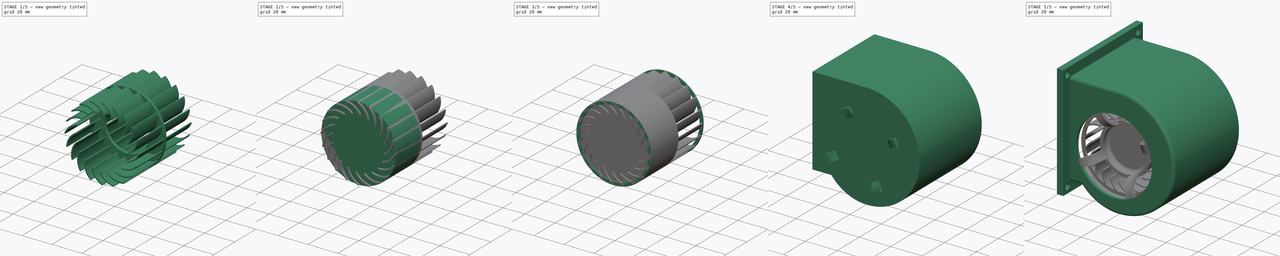
[diagram: build sequence overview — one tinted view per stage of 5, left to right]
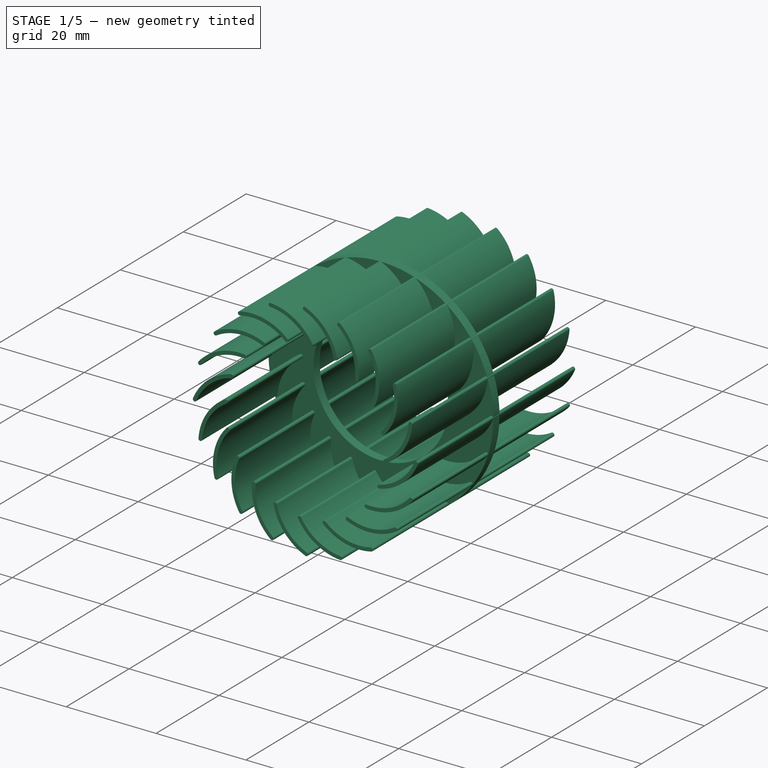
[diagram: stage 1 of 5 — iso view after this stage's code; geometry added in this stage tinted green]
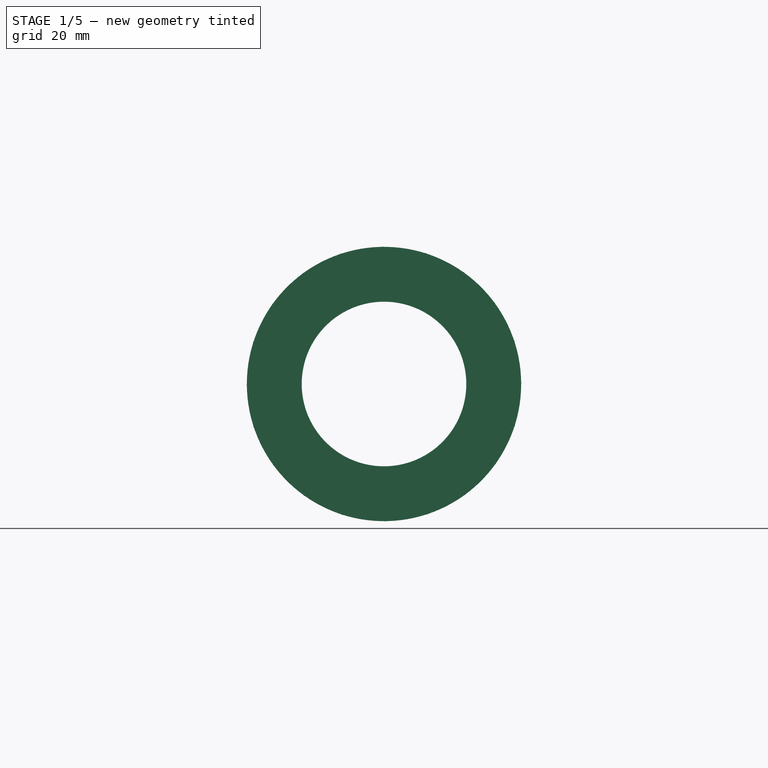
[diagram: stage 1 of 5 — front view after this stage's code; geometry added in this stage tinted green]
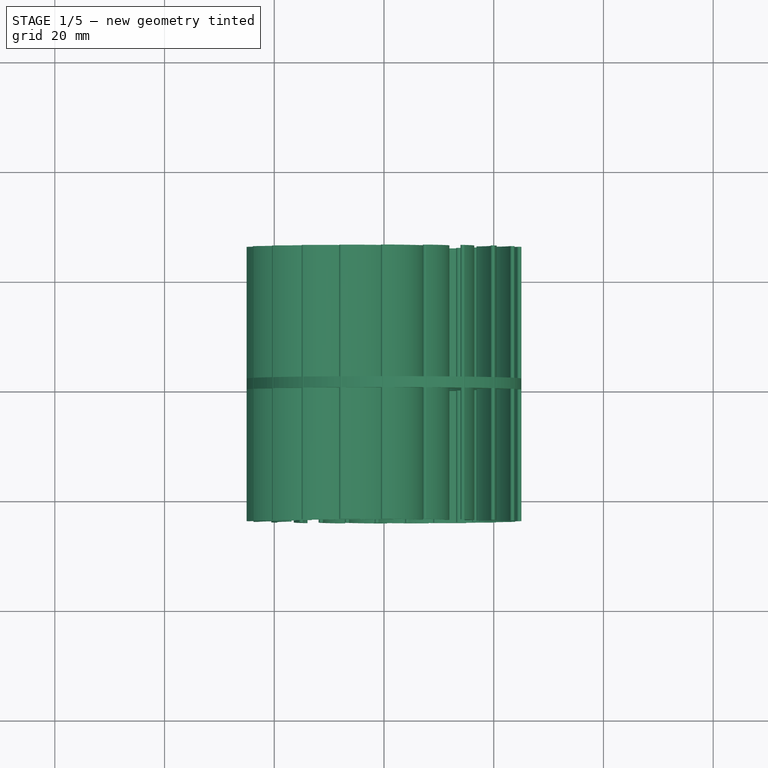
[diagram: stage 1 of 5 — top view after this stage's code; geometry added in this stage tinted green]
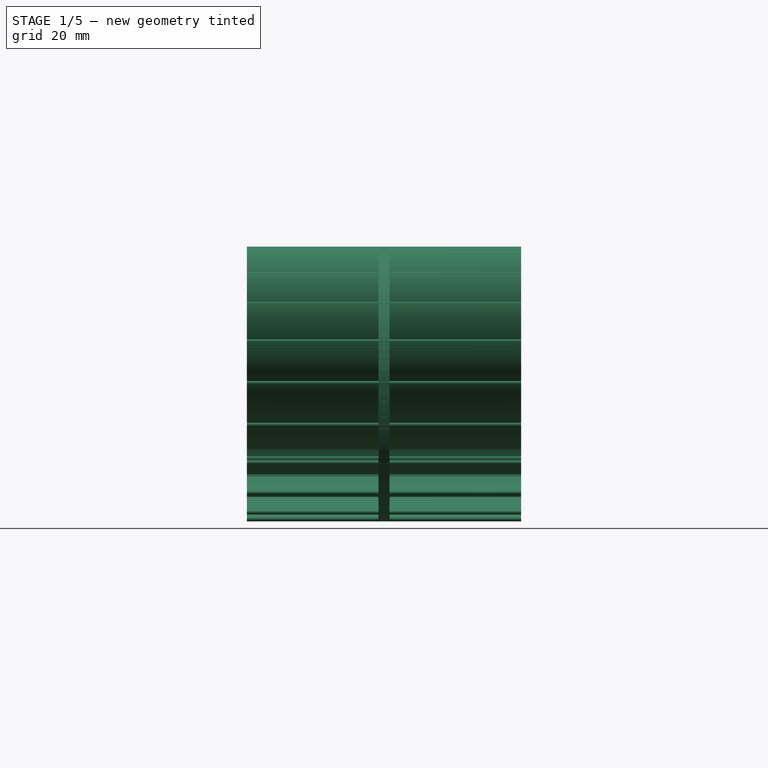
[diagram: stage 1 of 5 — right view after this stage's code; geometry added in this stage tinted green]
FCSTD DOCUMENT  (FreeCAD 0.18R13524 (Git))
Label: VENTILADOR SIROCO
License: All rights reserved
LicenseURL: http://en.wikipedia.org/wiki/All_rights_reserved
objects: Sketcher::SketchObject×11, Part::Cylinder×8, PartDesign::ShapeBinder×7, Part::Cut×5, PartDesign::Pocket×4, Part::MultiFuse×4, PartDesign::Pad×3, PartDesign::Body×3, PartDesign::Plane×3, Part::Feature×2, PartDesign::Thickness×1, PartDesign::Fillet×1, PartDesign::Revolution×1, Part::Fillet×1, Part::FeaturePython×1
note: 63 computed .brp shape members not serialized (recipe doc carries the construction recipe); baked Part::Feature solids carry a one-line shape summary decoded from their .brp

FEATURE [Part::Cylinder] Cylinder006
  Angle = 360
  AttacherType = Attacher::AttachEngine3D
  Height = 2
  Placement = pos=(0,2,0) rot=(1,0,0;1.5708rad)
  Radius = 25
FEATURE [Part::Cylinder] Cylinder007
  Angle = 360
  AttacherType = Attacher::AttachEngine3D
  Height = 10
  Placement = pos=(0,0,0) rot=(-1,0,0;1.5708rad)
  Radius = 15
FEATURE [Part::Cut] Cut004
  Base = -> Cylinder006
  Tool = -> Cylinder007
FEATURE [Part::Feature] Fusion003001  label="2-ROTOR"
  shape: bbox 50 x 50 x 50 mm, 18 faces, 3 solids (baked)
FEATURE [PartDesign::ShapeBinder] CopyFusion003001
FEATURE [Sketcher::SketchObject] Sketch007
  MapMode = 5
  Placement = pos=(0,-24,0) rot=(1,0,0;1.5708rad)
  Support = -> [CopyFusion003001]
FEATURE [PartDesign::ShapeBinder] CopyFusion003001001
FEATURE [Sketcher::SketchObject] Sketch008
  MapMode = 5
  Placement = pos=(0,-24,0) rot=(1,0,0;1.5708rad)
  Support = -> [CopyFusion003001001]
FEATURE [PartDesign::ShapeBinder] ReferenceFusion003001
  Support = -> [Fusion003001]
FEATURE [Sketcher::SketchObject] Sketch009
  MapMode = 5
  Placement = pos=(0,-24,0) rot=(1,0,0;1.5708rad)
  Support = -> [ReferenceFusion003001]
FEATURE [PartDesign::ShapeBinder] CopyFusion003001002
FEATURE [PartDesign::Plane] DatumPlane001
  MapMode = 5
  Placement = pos=(0,-24,0) rot=(1,0,0;1.5708rad)
  Support = -> [CopyFusion003001002]
FEATURE [PartDesign::ShapeBinder] CopyFusion003001003
FEATURE [PartDesign::Plane] DatumPlane002
  MapMode = 5
  Placement = pos=(0,-24,0) rot=(1,0,0;1.5708rad)
  Support = -> [CopyFusion003001003]
FEATURE [PartDesign::ShapeBinder] CopyFusion003001004
FEATURE [PartDesign::Body] Body001
  Group = -> [Sketch004,Revolution,DatumPlane,Sketch005,Pocket002,Sketch006,Pocket003,CopyFusion003001,Sketch007,CopyFusion003001001,Sketch008,ReferenceFusion003001,Sketch009,DatumPlane001,CopyFusion003001002,DatumPlane002,CopyFusion003001003,CopyFusion003001004]
  Origin = -> Origin001
  Tip = -> Pocket003
FEATURE [PartDesign::ShapeBinder] CopyFusion003001005
FEATURE [Sketcher::SketchObject] Sketch010
  MapMode = 5
  Placement = pos=(0,-24,0) rot=(1,0,0;1.5708rad)
  Support = -> [CopyFusion003001005]
  sketch-geometry (9):
    g0: Circle [constr] CenterX=0 CenterY=0 CenterZ=0 NormalX=0 NormalY=0 NormalZ=1 AngleXU=0 Radius=25
    g1: Circle [constr] CenterX=0 CenterY=0 CenterZ=0 NormalX=0 NormalY=0 NormalZ=1 AngleXU=0 Radius=18
    g2: LineSegment [constr] StartX=0 StartY=25 StartZ=0 EndX=7.09737 EndY=16.5417 EndZ=0
    g3: ArcOfCircle CenterX=-4.61323 CenterY=13.9222 CenterZ=0 NormalX=0 NormalY=0 NormalZ=1 AngleXU=0 Radius=12 StartAngle=0.220064 EndAngle=1.1762
    g4: ArcOfCircle CenterX=-4.61323 CenterY=13.9222 CenterZ=0 NormalX=0 NormalY=0 NormalZ=1 AngleXU=0 Radius=11.2 StartAngle=0.220064 EndAngle=1.1762
    g5: LineSegment [constr] StartX=0 StartY=25 StartZ=0 EndX=-0.307549 EndY=24.2615 EndZ=0
    g6: LineSegment [constr] StartX=6.31666 StartY=16.3671 StartZ=0 EndX=7.09737 EndY=16.5417 EndZ=0
    g7: ArcOfCircle CenterX=-0.153774 CenterY=24.6307 CenterZ=0 NormalX=0 NormalY=0 NormalZ=1 AngleXU=0 Radius=0.4 StartAngle=1.1762 EndAngle=4.31779
    g8: ArcOfCircle CenterX=6.70702 CenterY=16.4544 CenterZ=0 NormalX=0 NormalY=0 NormalZ=1 AngleXU=0 Radius=0.4 StartAngle=3.36166 EndAngle=6.50325
  constraints (25):
    c: Coincident(g0,g-1)
    c: Coincident(g1,g-1)
    c: PointOnObject(g2,g-2)
    c: Angle(g-2,g2) = 0.698132
    c: PointOnObject(g2,g0)
    c: Radius(g1) = 18
    c: Radius(g0) = 25
    c: PointOnObject(g2,g1)
    c: Coincident(g3,g2)
    c: Coincident(g3,g2)
    c: Radius(g3) = 12
    c: Coincident(g4,g3)
    c: Coincident(g5,g2)
    c: Coincident(g5,g4)
    c: Perpendicular(g3,g5)
    c: Coincident(g6,g4)
    c: Coincident(g6,g2)
    c: Perpendicular(g4,g6)
    c: PointOnObject(g7,g5)
    c: Coincident(g4,g7)
    c: Coincident(g2,g7)
    c: PointOnObject(g8,g6)
    c: Coincident(g8,g2)
    c: Coincident(g4,g8)
    c: Radius(g8) = 0.4
FEATURE [PartDesign::Pad] Pad002
  Length = 50
  Length2 = 100
  Profile = -> Sketch010
  Reversed = true
  Type = 0
FEATURE [PartDesign::Body] Body002
  Group = -> [CopyFusion003001005,Sketch010,Pad002]
  Origin = -> Origin002
  Tip = -> Pad002
FEATURE [Part::FeaturePython] Array  # Draft array (typed FeaturePython)
  Angle = 360
  ArrayType = 1
  Axis = (0,1,0)
  Base = -> Pad002
  Center = (0,0,0)
  Fuse = false
  IntervalAxis = (0,0,0)
  IntervalX = (1,0,0)
  IntervalY = (0,1,0)
  IntervalZ = (0,0,0)
  NumberPolar = 20
  NumberX = 2
  NumberY = 2
  NumberZ = 1
FEATURE [Part::MultiFuse] Fusion003002  label="3-PALHETAS"
  Shapes = -> [Array]
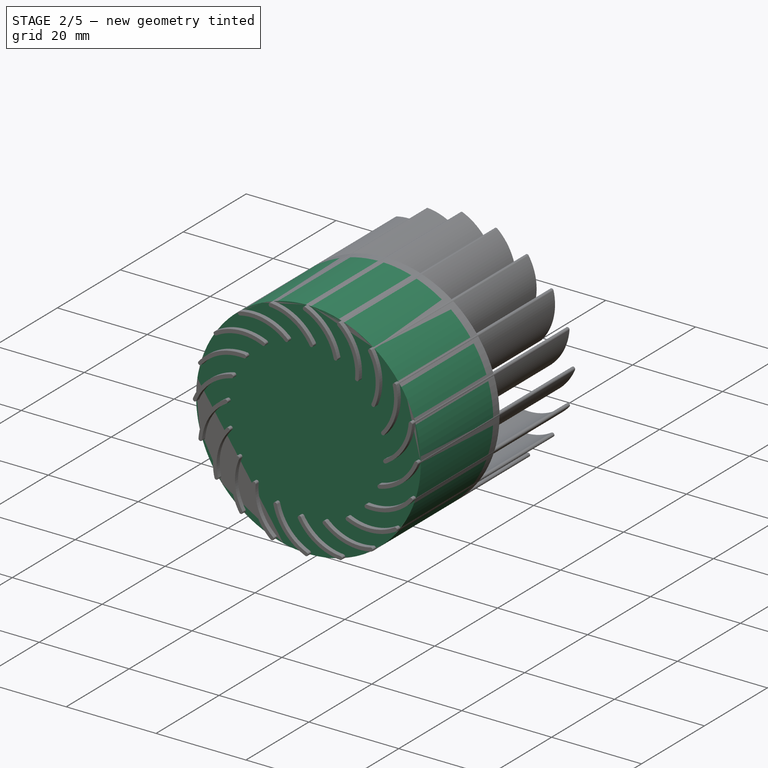
[diagram: stage 2 of 5 — iso view after this stage's code; geometry added in this stage tinted green]
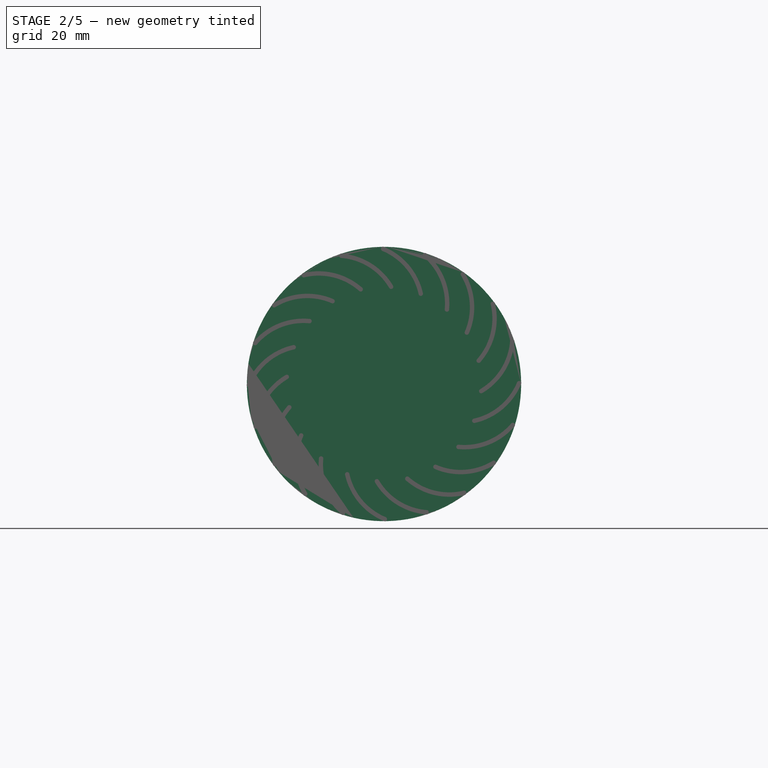
[diagram: stage 2 of 5 — front view after this stage's code; geometry added in this stage tinted green]
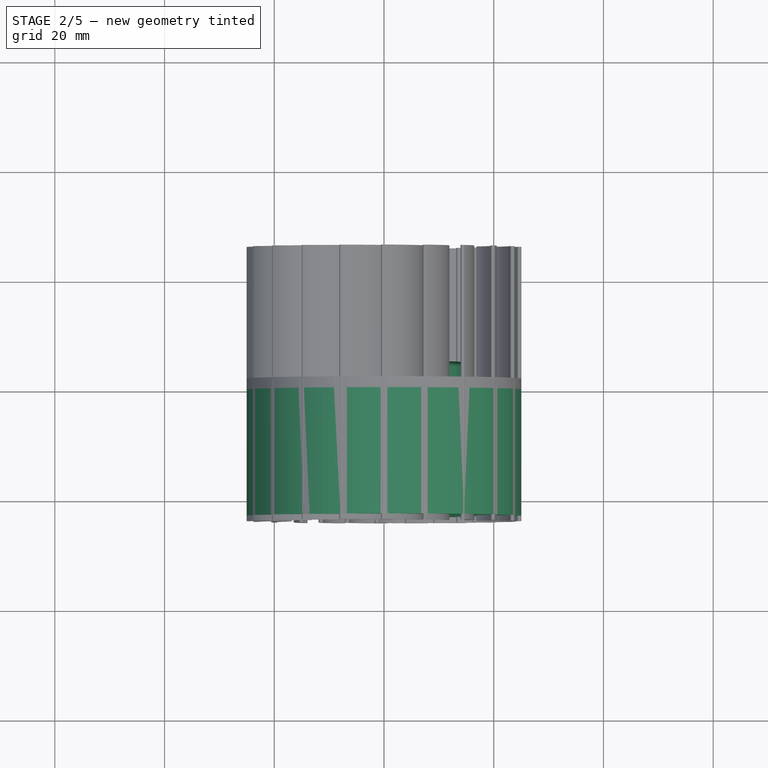
[diagram: stage 2 of 5 — top view after this stage's code; geometry added in this stage tinted green]
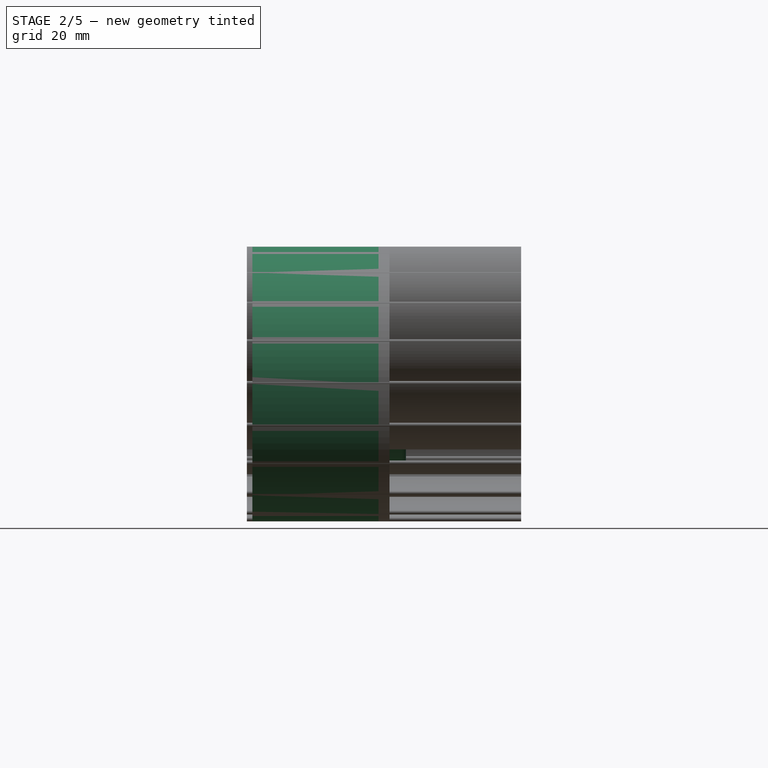
[diagram: stage 2 of 5 — right view after this stage's code; geometry added in this stage tinted green]
FEATURE [Part::Feature] Fusion001  label="1-CARCAÇA"
  shape: bbox 72.93 x 72 x 79.93 mm, 65 faces (baked)
FEATURE [Part::Cylinder] Cylinder
  Angle = 360
  AttacherType = Attacher::AttachEngine3D
  Height = 18
  Placement = pos=(0,5,0) rot=(1,0,0;1.5708rad)
  Radius = 15
FEATURE [Part::Cylinder] Cylinder001
  Angle = 360
  AttacherType = Attacher::AttachEngine3D
  Height = 17
  Placement = pos=(0,4,0) rot=(1,0,0;1.5708rad)
  Radius = 13
FEATURE [Part::Cut] Cut
  Base = -> Cylinder
  Tool = -> Cylinder001
FEATURE [Part::Fillet] Fillet001
  Base = -> Cut
  Edges = 1 edges r=1: [Edge3]
FEATURE [Part::Cylinder] Cylinder005
  Angle = 360
  AttacherType = Attacher::AttachEngine3D
  Height = 23
  Placement = pos=(0,0,0) rot=(1,0,0;1.5708rad)
  Radius = 25
FEATURE [Part::MultiFuse] Fusion002
  Shapes = -> [Fillet001,Cut004]
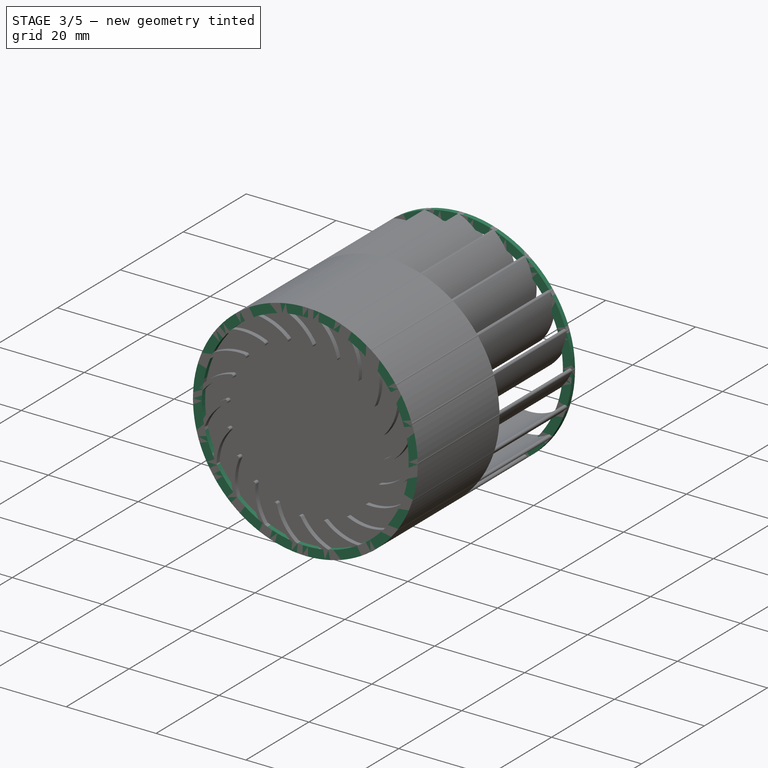
[diagram: stage 3 of 5 — iso view after this stage's code; geometry added in this stage tinted green]
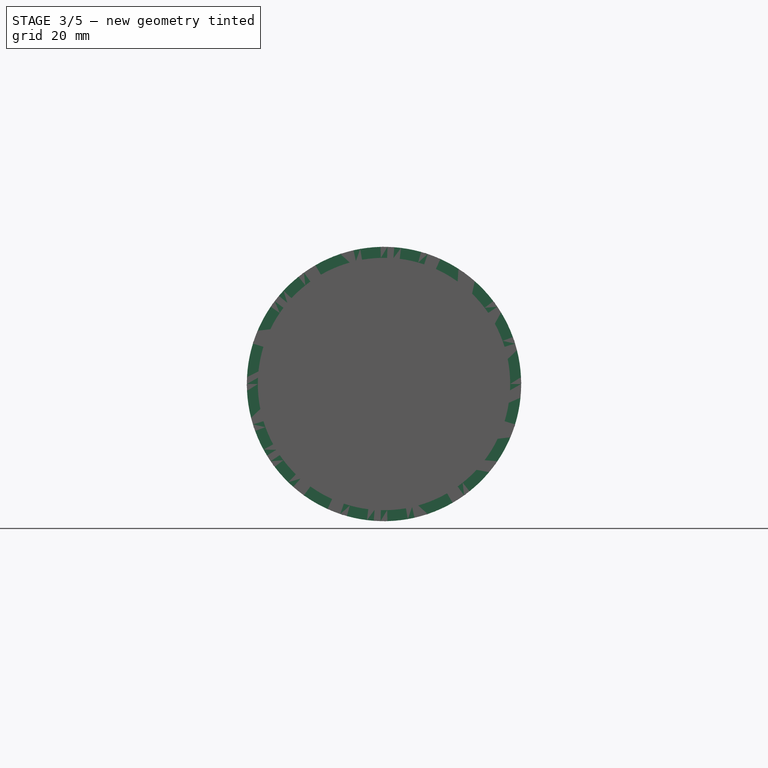
[diagram: stage 3 of 5 — front view after this stage's code; geometry added in this stage tinted green]
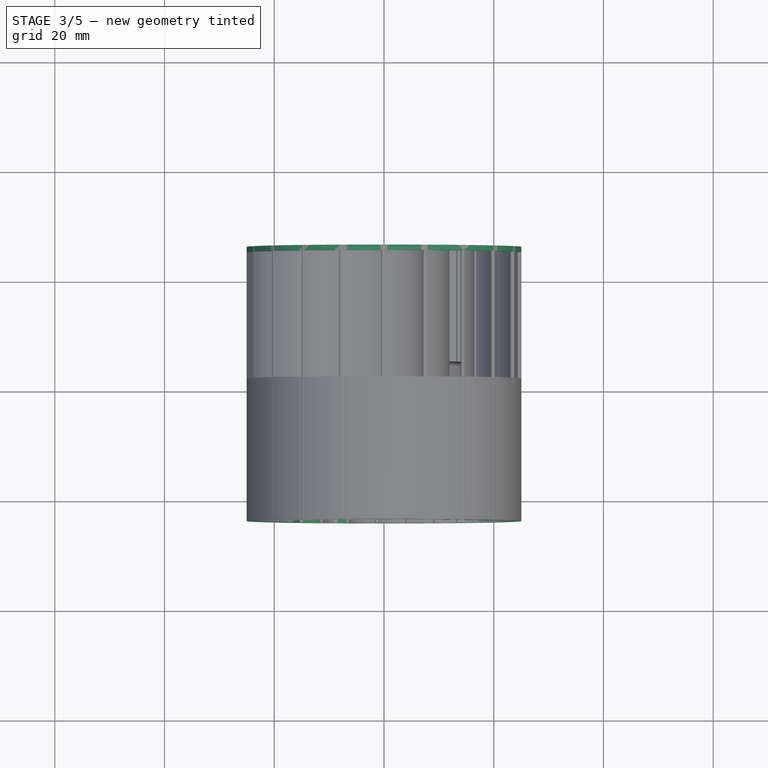
[diagram: stage 3 of 5 — top view after this stage's code; geometry added in this stage tinted green]
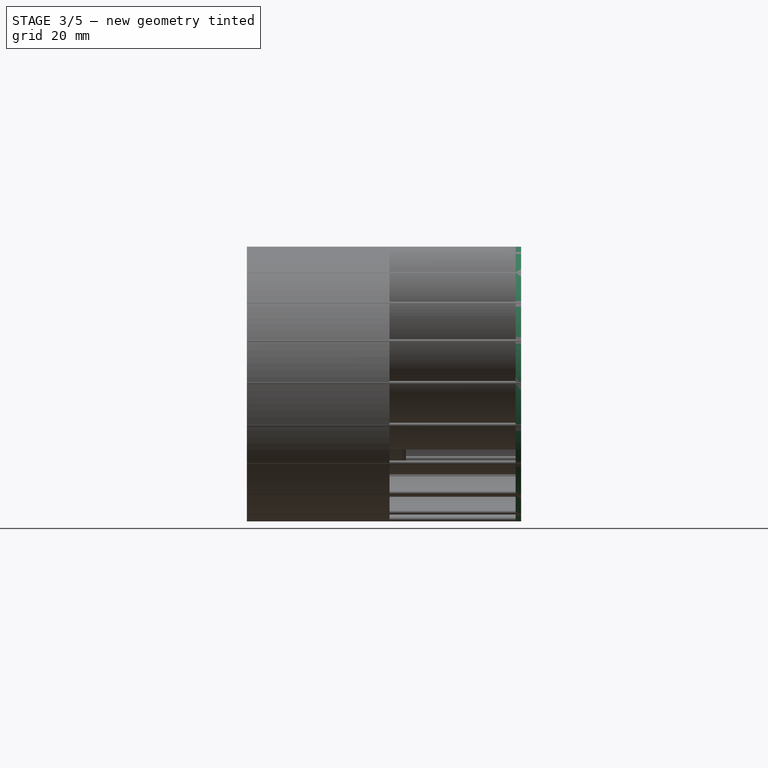
[diagram: stage 3 of 5 — right view after this stage's code; geometry added in this stage tinted green]
FEATURE [Part::Cylinder] Cylinder002
  Angle = 360
  AttacherType = Attacher::AttachEngine3D
  Height = 50
  Placement = pos=(0,26,0) rot=(1,0,0;1.5708rad)
  Radius = 25
FEATURE [Part::Cylinder] Cylinder003
  Angle = 360
  AttacherType = Attacher::AttachEngine3D
  Height = 50
  Placement = pos=(0,26,0) rot=(1,0,0;1.5708rad)
  Radius = 23
FEATURE [Part::Cut] Cut001
  Base = -> Cylinder002
  Tool = -> Cylinder003
FEATURE [Part::Cylinder] Cylinder004
  Angle = 360
  AttacherType = Attacher::AttachEngine3D
  Height = 23
  Placement = pos=(0,25,0) rot=(1,0,0;1.5708rad)
  Radius = 25
FEATURE [Part::Cut] Cut002
  Base = -> Cut001
  Tool = -> Cylinder004
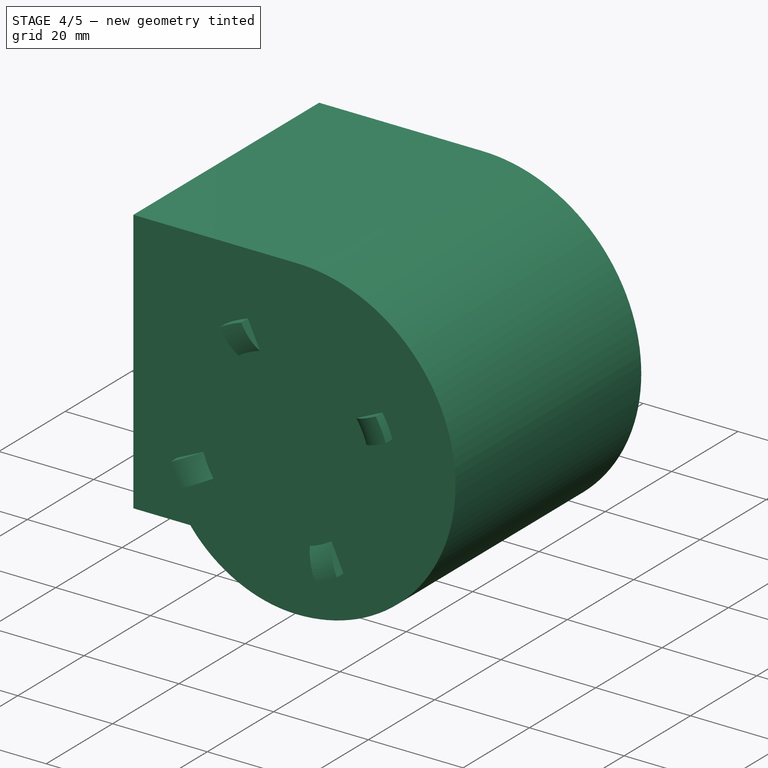
[diagram: stage 4 of 5 — iso view after this stage's code; geometry added in this stage tinted green]
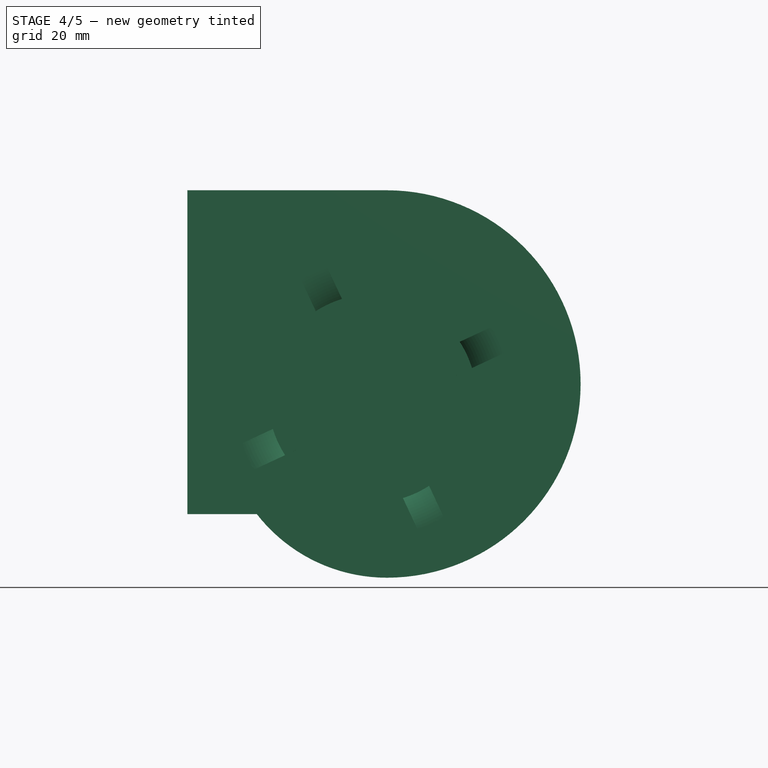
[diagram: stage 4 of 5 — front view after this stage's code; geometry added in this stage tinted green]
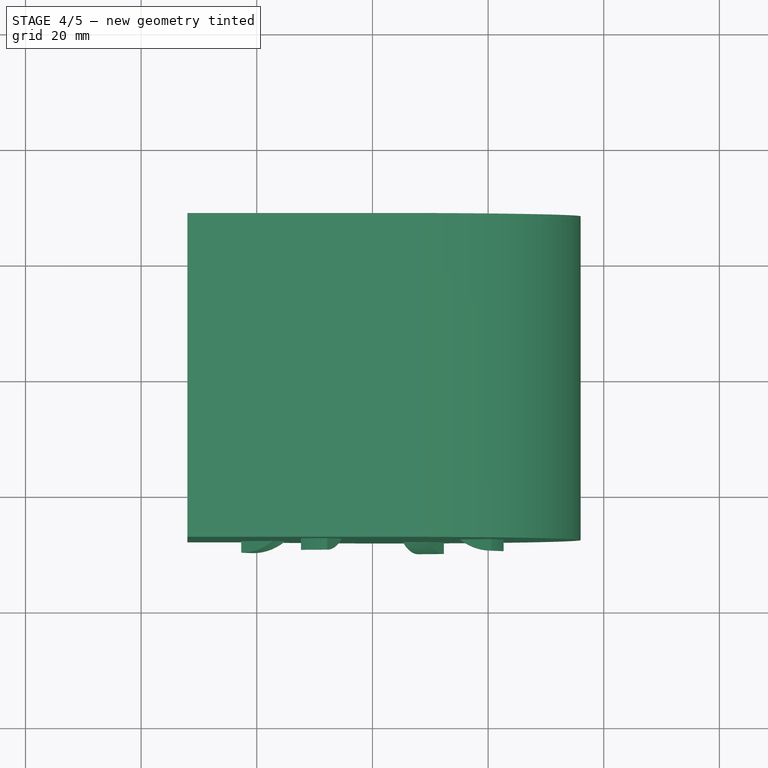
[diagram: stage 4 of 5 — top view after this stage's code; geometry added in this stage tinted green]
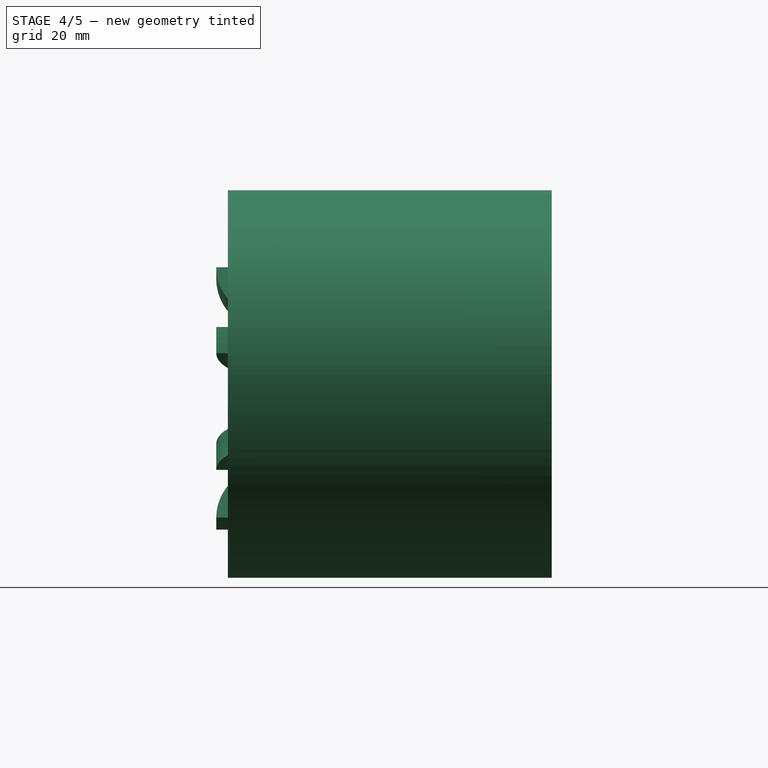
[diagram: stage 4 of 5 — right view after this stage's code; geometry added in this stage tinted green]
FEATURE [Sketcher::SketchObject] Sketch
  MapMode = 5
  Placement = pos=(0,0,0) rot=(1,0,0;1.5708rad)
  Support = -> [XZ_Plane]
  sketch-geometry (12):
    g0: Circle [constr] CenterX=0 CenterY=0 CenterZ=0 NormalX=0 NormalY=0 NormalZ=1 AngleXU=0 Radius=25
    g1: LineSegment [constr] StartX=-2.5 StartY=2.5 StartZ=0 EndX=-2.5 EndY=-2.5 EndZ=0
    g2: LineSegment [constr] StartX=-2.5 StartY=-2.5 StartZ=0 EndX=2.5 EndY=-2.5 EndZ=0
    g3: LineSegment [constr] StartX=2.5 StartY=-2.5 StartZ=0 EndX=2.5 EndY=2.5 EndZ=0
    g4: LineSegment [constr] StartX=2.5 StartY=2.5 StartZ=0 EndX=-2.5 EndY=2.5 EndZ=0
    g5: Circle [constr] CenterX=0 CenterY=0 CenterZ=0 NormalX=0 NormalY=0 NormalZ=1 AngleXU=0 Radius=3.53553
    g6: LineSegment StartX=-32 StartY=-20 StartZ=0 EndX=-32 EndY=36 EndZ=0
    g7: LineSegment StartX=-32 StartY=36 StartZ=0 EndX=2.5 EndY=36 EndZ=0
    g8: ArcOfCircle CenterX=2.5 CenterY=2.5 CenterZ=0 NormalX=0 NormalY=0 NormalZ=1 AngleXU=0 Radius=33.5 StartAngle=0 EndAngle=1.5708
    g9: ArcOfCircle CenterX=2.5 CenterY=2.5 CenterZ=0 NormalX=0 NormalY=0 NormalZ=1 AngleXU=0 Radius=33.5 StartAngle=4.71239 EndAngle=6.28319
    g10: ArcOfCircle CenterX=2.5 CenterY=-2.5 CenterZ=0 NormalX=0 NormalY=0 NormalZ=1 AngleXU=0 Radius=28.5 StartAngle=3.80276 EndAngle=4.71239
    g11: LineSegment StartX=-32 StartY=-20 StartZ=0 EndX=-19.9944 EndY=-20 EndZ=0
  constraints (34):
    c: Coincident(g0,g-1)
    c: Radius(g0) = 25
    c: Coincident(g1,g2)
    c: Coincident(g3,g4)
    c: Coincident(g4,g1)
    c: Equal(g1,g2)
    c: Equal(g1,g3)
    c: Equal(g1,g4)
    c: PointOnObject(g1,g5)
    c: PointOnObject(g2,g5)
    c: PointOnObject(g3,g5)
    c: PointOnObject(g4,g5)
    c: Coincident(g5,g-1)
    c: Horizontal(g4)
    c: DistanceX(g4,g4) = 5
    c: Vertical(g6)
    c: Coincident(g6,g7)
    c: Horizontal(g7)
    c: DistanceY(g-1,g6) = 36
    c: DistanceY(g6,g6) = 56
    c: Vertical(g7,g3)
    c: Coincident(g8,g3)
    c: Coincident(g8,g7)
    c: Horizontal(g3,g8)
    c: Coincident(g9,g3)
    c: Vertical(g9,g3)
    c: Coincident(g10,g3)
    c: Coincident(g10,g9)
    c: Coincident(g8,g9)
    c: Coincident(g11,g6)
    c: Horizontal(g11)
    c: Coincident(g11,g10)
    c: Coincident(g2,g3)
    c: DistanceX(g6,g-1) = 32
FEATURE [PartDesign::Pad] Pad
  Length = 56
  Length2 = 100
  Midplane = true
  Placement = pos=(0,0,0) rot=(1,0,0;1.5708rad)
  Profile = -> Sketch
  Type = 0
FEATURE [PartDesign::Body] Body
  Group = -> [Sketch,Pad,Thickness,Sketch001,Pocket,Fillet,Sketch002,Pad001,Sketch003,Pocket001]
  Origin = -> Origin
  Tip = -> Pocket001
FEATURE [Sketcher::SketchObject] Sketch004
  MapMode = 5
  Support = -> [XY_Plane001]
  sketch-geometry (10):
    g0: ArcOfCircle CenterX=24 CenterY=-20 CenterZ=0 NormalX=0 NormalY=0 NormalZ=1 AngleXU=0 Radius=8 StartAngle=3.14159 EndAngle=4.71239
    g1: ArcOfCircle CenterX=24 CenterY=-20 CenterZ=0 NormalX=0 NormalY=0 NormalZ=1 AngleXU=0 Radius=10 StartAngle=3.14159 EndAngle=4.71239
    g2: LineSegment StartX=24 StartY=-30 StartZ=0 EndX=24 EndY=-28 EndZ=0
    g3: LineSegment StartX=14 StartY=-20 StartZ=0 EndX=14 EndY=-18 EndZ=0
    g4: ArcOfCircle CenterX=12 CenterY=-18 CenterZ=0 NormalX=0 NormalY=0 NormalZ=1 AngleXU=0 Radius=2 StartAngle=0 EndAngle=1.5708
    g5: LineSegment StartX=12 StartY=-16 StartZ=0 EndX=0 EndY=-16 EndZ=0
    g6: LineSegment StartX=0 StartY=-16 StartZ=0 EndX=0 EndY=-14 EndZ=0
    g7: LineSegment StartX=0 StartY=-14 StartZ=0 EndX=12 EndY=-14 EndZ=0
    g8: ArcOfCircle CenterX=12 CenterY=-18 CenterZ=0 NormalX=0 NormalY=0 NormalZ=1 AngleXU=0 Radius=4 StartAngle=0 EndAngle=1.5708
    g9: LineSegment StartX=16 StartY=-18 StartZ=0 EndX=16 EndY=-20 EndZ=0
  constraints (27):
    c: Coincident(g1,g0)
    c: Coincident(g2,g1)
    c: Coincident(g2,g0)
    c: Vertical(g2)
    c: Tangent(g1,g3) = 1.5708
    c: Tangent(g3,g4) = -1.5708
    c: Tangent(g4,g5) = -1.5708
    c: Coincident(g5,g6)
    c: PointOnObject(g6,g-2)
    c: Vertical(g6)
    c: Coincident(g6,g7)
    c: Horizontal(g7)
    c: Tangent(g7,g8) = 1.5708
    c: Coincident(g9,g0)
    c: Vertical(g9)
    c: Horizontal(g5)
    c: Tangent(g8,g9) = 1.5708
    c: Coincident(g4,g8)
    c: Equal(g6,g2)
    c: DistanceY(g1,g-1) = 30
    c: DistanceY(g6,g6) = 2
    c: DistanceX(g-1,g1) = 24
    c: Radius(g1) = 10
    c: Horizontal(g1,g0)
    c: Horizontal(g3,g8)
    c: DistanceY(g0,g8) = 2
    c: Radius(g4) = 2
FEATURE [PartDesign::Revolution] Revolution
  Angle = 360
  Axis = (0,1,0)
  Base = (0,0,0)
  Profile = -> Sketch004
  ReferenceAxis = -> Y_Axis001
  Reversed = true
FEATURE [PartDesign::Plane] DatumPlane
  MapMode = 11
  Placement = pos=(0,-30,0) rot=(0.57735,-0.57735,0.57735;2.0944rad)
  Support = -> [Revolution]
FEATURE [Sketcher::SketchObject] Sketch005
  ExternalGeometry = -> [Revolution]
  MapMode = 5
  Placement = pos=(0,-30,0) rot=(0.57735,-0.57735,0.57735;2.0944rad)
  Support = -> [DatumPlane]
  sketch-geometry (14):
    g0: LineSegment [constr] StartX=0 StartY=0 StartZ=0 EndX=21.7514 EndY=10.1428 EndZ=0
    g1: ArcOfCircle CenterX=0 CenterY=0 CenterZ=0 NormalX=0 NormalY=0 NormalZ=1 AngleXU=0 Radius=24 StartAngle=5.25308 EndAngle=6.61516
    g2: LineSegment [constr] StartX=0 StartY=0 StartZ=0 EndX=10.1428 EndY=-21.7514 EndZ=0
    g3: LineSegment StartX=22.6896 StartY=7.82189 StartZ=0 EndX=3.32232 EndY=-1.20922 EndZ=0
    g4: LineSegment StartX=3.32232 StartY=-1.20922 StartZ=0 EndX=12.3534 EndY=-20.5765 EndZ=0
    g5: ArcOfCircle CenterX=0 CenterY=0 CenterZ=0 NormalX=0 NormalY=0 NormalZ=1 AngleXU=0 Radius=24 StartAngle=0.540688 EndAngle=1.90277
    g6: LineSegment StartX=20.5765 StartY=12.3534 StartZ=0 EndX=1.20922 EndY=3.32232 EndZ=0
    g7: LineSegment StartX=-7.82189 StartY=22.6896 StartZ=0 EndX=1.20922 EndY=3.32232 EndZ=0
    g8: ArcOfCircle CenterX=0 CenterY=0 CenterZ=0 NormalX=0 NormalY=0 NormalZ=1 AngleXU=0 Radius=24 StartAngle=2.11148 EndAngle=3.47357
    g9: LineSegment StartX=-22.6896 StartY=-7.82189 StartZ=0 EndX=-3.32232 EndY=1.20922 EndZ=0
    g10: LineSegment StartX=-3.32232 StartY=1.20922 StartZ=0 EndX=-12.3534 EndY=20.5765 EndZ=0
    g11: ArcOfCircle CenterX=0 CenterY=0 CenterZ=0 NormalX=0 NormalY=0 NormalZ=1 AngleXU=0 Radius=24 StartAngle=3.68228 EndAngle=5.04437
    g12: LineSegment StartX=7.82189 StartY=-22.6896 StartZ=0 EndX=-1.20922 EndY=-3.32232 EndZ=0
    g13: LineSegment StartX=-1.20922 StartY=-3.32232 StartZ=0 EndX=-20.5765 EndY=-12.3534 EndZ=0
  constraints (43):
    c: Angle(g-1,g0) = 0.436332
    c: PointOnObject(g1,g-3)
    c: Perpendicular(g2,g0)
    c: Coincident(g3,g1)
    c: Coincident(g4,g3)
    c: PointOnObject(g4,g-3)
    c: Coincident(g1,g4)
    c: Parallel(g0,g3)
    c: Parallel(g4,g2)
    c: Coincident(g-1,g1)
    c: Distance(g3,g2) = 2.5
    c: Distance(g1,g0) = 2.5
    c: Coincident(g5,g-1)
    c: PointOnObject(g5,g-3)
    c: Coincident(g6,g5)
    c: Coincident(g7,g5)
    c: Coincident(g7,g6)
    c: Parallel(g6,g0)
    c: Parallel(g7,g2)
    c: Distance(g6,g0) = 2.5
    c: Distance(g6,g2) = 2.5
    c: Coincident(g8,g-1)
    c: PointOnObject(g8,g-3)
    c: Coincident(g8,g9)
    c: Coincident(g9,g10)
    c: Coincident(g10,g8)
    c: Parallel(g10,g2)
    c: Parallel(g9,g0)
    c: Distance(g9,g2) = 2.5
    c: Distance(g9,g0) = 2.5
    c: Coincident(g11,g-1)
    c: PointOnObject(g11,g-3)
    c: Coincident(g11,g12)
    c: Coincident(g12,g13)
    c: Coincident(g13,g11)
    c: Parallel(g12,g2)
    c: Coincident(g0,g-1)
    c: Coincident(g2,g-1)
    c: Parallel(g13,g0)
    c: PointOnObject(g2,g-3)
    c: PointOnObject(g0,g-3)
    c: Distance(g11,g2) = 2.5
    c: Distance(g12,g0) = 2.5
FEATURE [PartDesign::Pocket] Pocket002
  BaseFeature = -> Revolution
  Length = 10
  Length2 = 100
  Profile = -> Sketch005
  Type = 0
FEATURE [Sketcher::SketchObject] Sketch006
  MapMode = 5
  Placement = pos=(0,-16,0) rot=(1,0,0;1.5708rad)
  Support = -> [Pocket002]
  sketch-geometry (1):
    g0: Circle CenterX=0 CenterY=0 CenterZ=0 NormalX=0 NormalY=0 NormalZ=1 AngleXU=0 Radius=4
  constraints (2):
    c: Coincident(g0,g-1)
    c: Radius(g0) = 4
FEATURE [PartDesign::Pocket] Pocket003
  BaseFeature = -> Pocket002
  Length = 5
  Length2 = 100
  Profile = -> Sketch006
  Reversed = true
  Type = 0
FEATURE [Part::Cut] Cut003
  Base = -> Cut002
  Tool = -> Cylinder005
FEATURE [Part::MultiFuse] Fusion003
  Shapes = -> [Cut003,Fusion002]
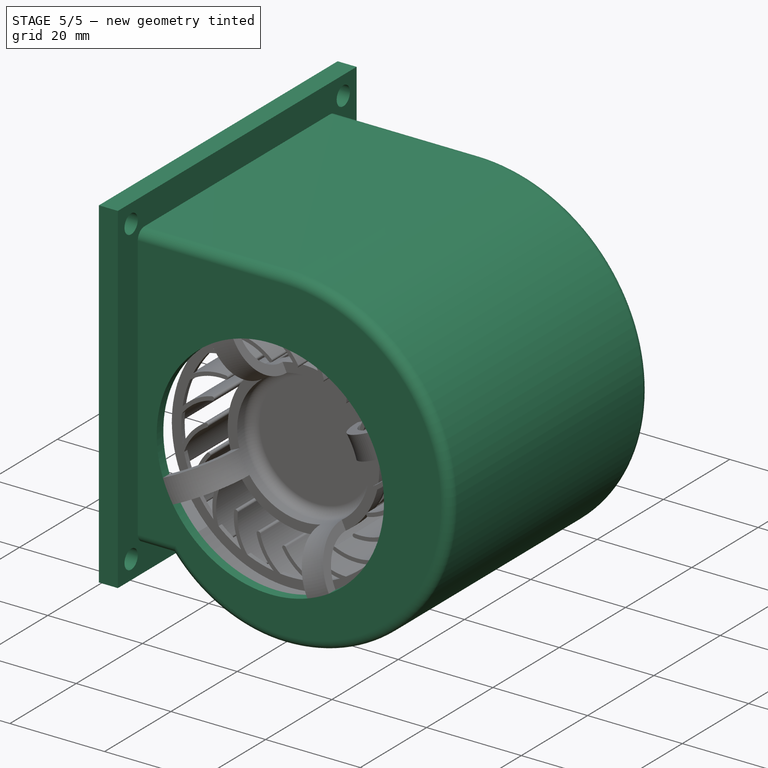
[diagram: stage 5 of 5 — iso view after this stage's code; geometry added in this stage tinted green]
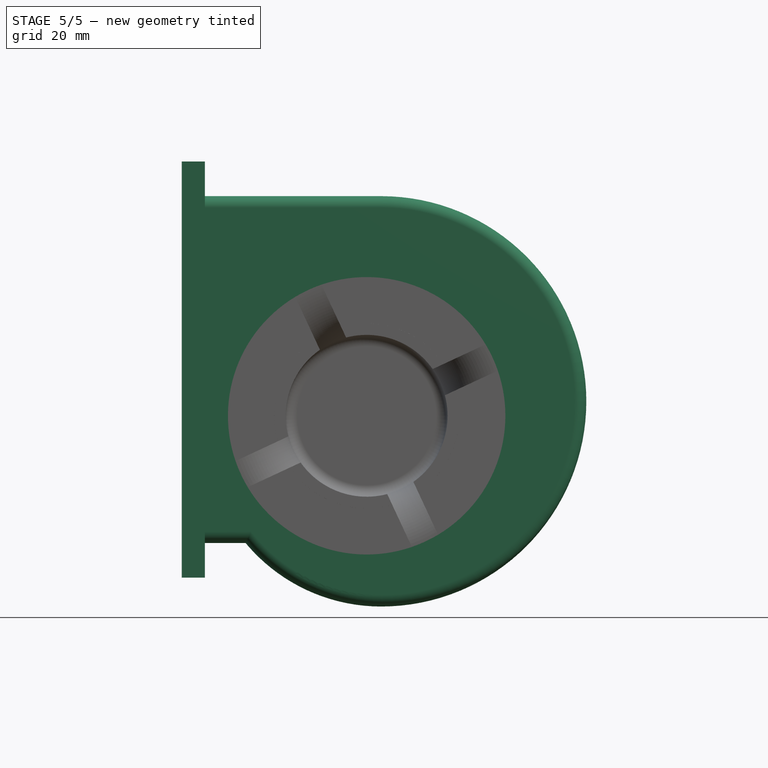
[diagram: stage 5 of 5 — front view after this stage's code; geometry added in this stage tinted green]
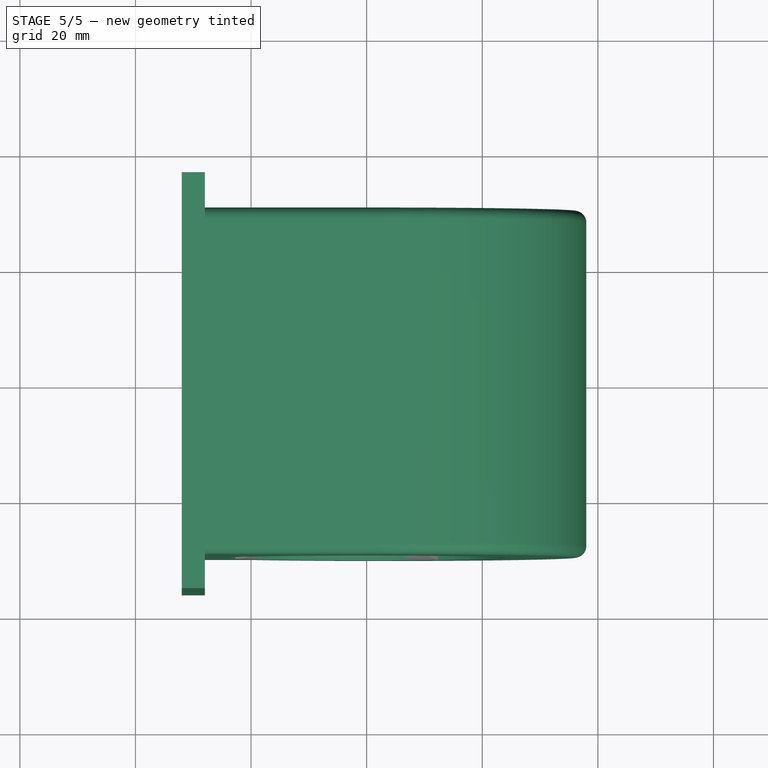
[diagram: stage 5 of 5 — top view after this stage's code; geometry added in this stage tinted green]
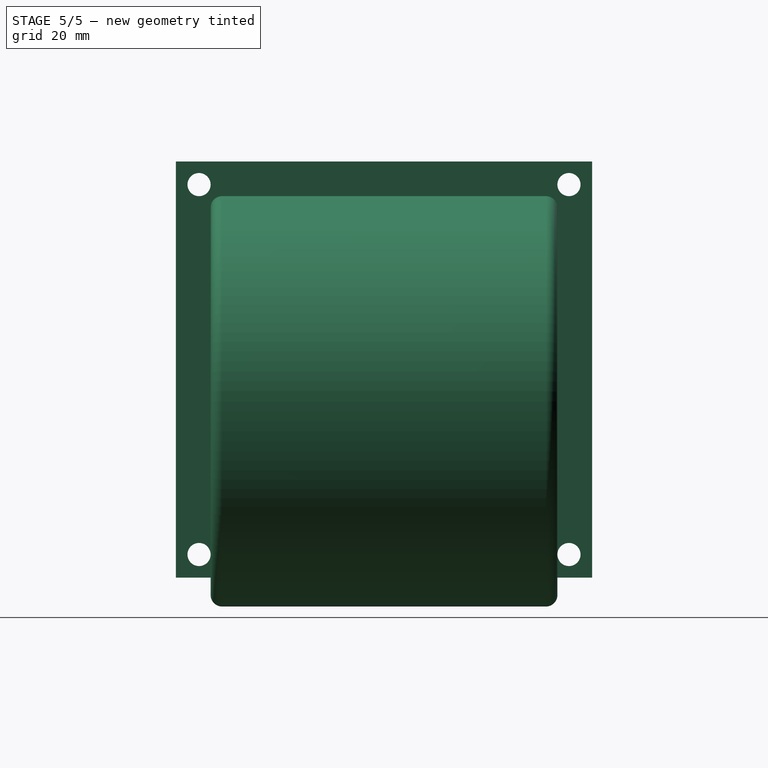
[diagram: stage 5 of 5 — right view after this stage's code; geometry added in this stage tinted green]
FEATURE [PartDesign::Thickness] Thickness
  Base = -> Pad [Face1]
  BaseFeature = -> Pad
  Join = 0
  Mode = 0
  Value = 2
FEATURE [Sketcher::SketchObject] Sketch001
  MapMode = 5
  Placement = pos=(0,-30,0) rot=(1,0,0;1.5708rad)
  Support = -> [Thickness]
  sketch-geometry (1):
    g0: Circle CenterX=0 CenterY=0 CenterZ=0 NormalX=0 NormalY=0 NormalZ=1 AngleXU=0 Radius=24
  constraints (2):
    c: Coincident(g0,g-1)
    c: Radius(g0) = 24
FEATURE [PartDesign::Pocket] Pocket
  BaseFeature = -> Thickness
  Length = 5
  Length2 = 100
  Profile = -> Sketch001
  Type = 1
FEATURE [PartDesign::Fillet] Fillet
  Base = -> Pocket [Edge39]
  BaseFeature = -> Pocket
  Radius = 1.9
FEATURE [Sketcher::SketchObject] Sketch002
  ExternalGeometry = -> [Fillet]
  MapMode = 5
  Placement = pos=(-32,0,0) rot=(0.57735,-0.57735,-0.57735;2.0944rad)
  Support = -> [Fillet]
  sketch-geometry (8):
    g0: LineSegment StartX=-36 StartY=44 StartZ=0 EndX=36 EndY=44 EndZ=0
    g1: LineSegment StartX=36 StartY=44 StartZ=0 EndX=36 EndY=-28 EndZ=0
    g2: LineSegment StartX=36 StartY=-28 StartZ=0 EndX=-36 EndY=-28 EndZ=0
    g3: LineSegment StartX=-36 StartY=-28 StartZ=0 EndX=-36 EndY=44 EndZ=0
    g4: LineSegment StartX=-28 StartY=36 StartZ=0 EndX=28 EndY=36 EndZ=0
    g5: LineSegment StartX=28 StartY=36 StartZ=0 EndX=28 EndY=-20 EndZ=0
    g6: LineSegment StartX=28 StartY=-20 StartZ=0 EndX=-28 EndY=-20 EndZ=0
    g7: LineSegment StartX=-28 StartY=-20 StartZ=0 EndX=-28 EndY=36 EndZ=0
  constraints (23):
    c: Coincident(g0,g1)
    c: Coincident(g1,g2)
    c: Coincident(g2,g3)
    c: Coincident(g3,g0)
    c: Horizontal(g0)
    c: Horizontal(g2)
    c: Vertical(g1)
    c: Vertical(g3)
    c: DistanceX(g-6,g0) = 8
    c: DistanceY(g1,g-6) = 8
    c: Coincident(g4,g5)
    c: Coincident(g5,g6)
    c: Coincident(g6,g7)
    c: Coincident(g7,g4)
    c: Horizontal(g4)
    c: Horizontal(g6)
    c: Vertical(g5)
    c: Vertical(g7)
    c: Coincident(g4,g-4)
    c: Coincident(g5,g-6)
    c: Equal(g0,g1)
    c: Equal(g3,g0)
    c: DistanceX(g0,g4) = 8
FEATURE [PartDesign::Pad] Pad001
  BaseFeature = -> Fillet
  Length = 4
  Length2 = 100
  Profile = -> Sketch002
  Reversed = true
  Type = 0
FEATURE [Sketcher::SketchObject] Sketch003
  ExternalGeometry = -> [Pad001]
  MapMode = 5
  Placement = pos=(-32,0,0) rot=(0.57735,-0.57735,-0.57735;2.0944rad)
  Support = -> [Pad001]
  sketch-geometry (4):
    g0: Circle CenterX=-32 CenterY=40 CenterZ=0 NormalX=0 NormalY=0 NormalZ=1 AngleXU=0 Radius=2
    g1: Circle CenterX=32 CenterY=40 CenterZ=0 NormalX=0 NormalY=0 NormalZ=1 AngleXU=0 Radius=2
    g2: Circle CenterX=32 CenterY=-24 CenterZ=0 NormalX=0 NormalY=0 NormalZ=1 AngleXU=0 Radius=2
    g3: Circle CenterX=-32 CenterY=-24 CenterZ=0 NormalX=0 NormalY=0 NormalZ=1 AngleXU=0 Radius=2
  constraints (12):
    c: Radius(g0) = 2
    c: DistanceY(g0,g-4) = 4
    c: DistanceX(g-4,g0) = 4
    c: Equal(g0,g1)
    c: Equal(g1,g2)
    c: Equal(g2,g3)
    c: Horizontal(g1,g0)
    c: Vertical(g0,g3)
    c: Horizontal(g3,g2)
    c: DistanceX(g1,g-6) = 4
    c: Vertical(g2,g1)
    c: DistanceY(g-5,g3) = 4
FEATURE [PartDesign::Pocket] Pocket001
  BaseFeature = -> Pad001
  Length = 5
  Length2 = 100
  Profile = -> Sketch003
  Type = 0
FEATURE [Part::MultiFuse] Fusion
  Shapes = -> [Pocket001,Pocket003]
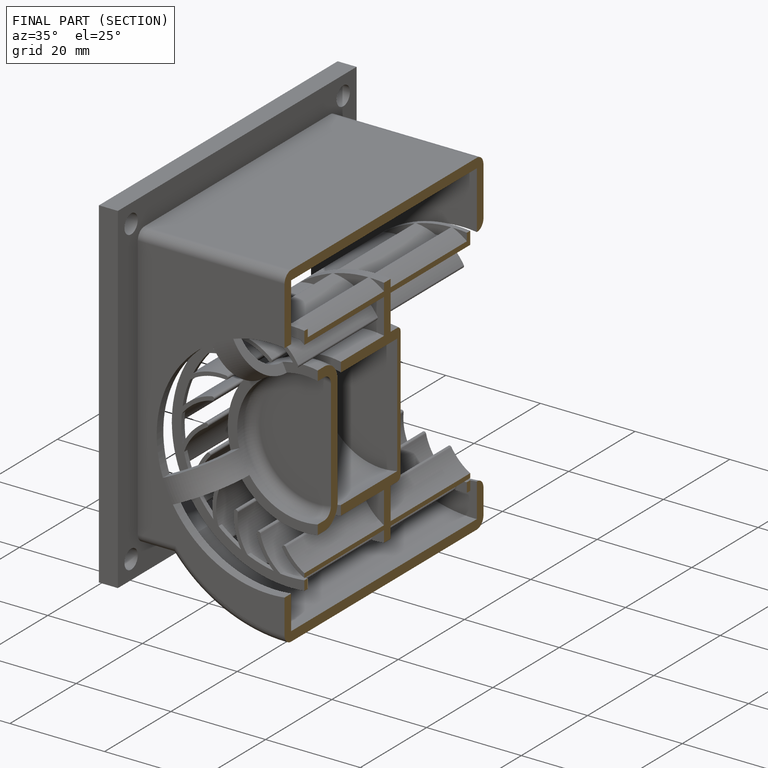
[diagram: finished part — half-section view (interior)]
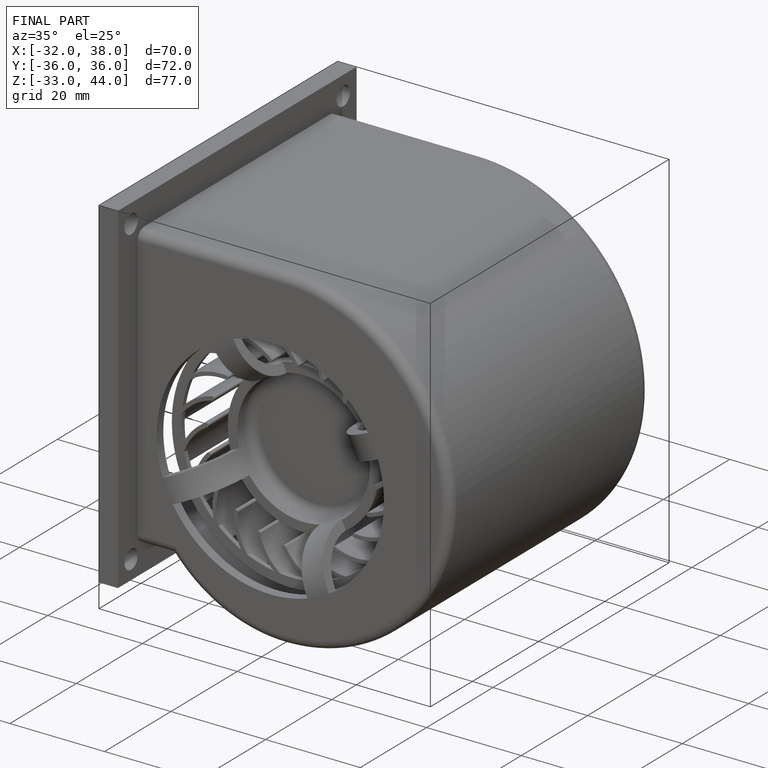
[diagram: finished part — iso view with bounding-box wireframe]
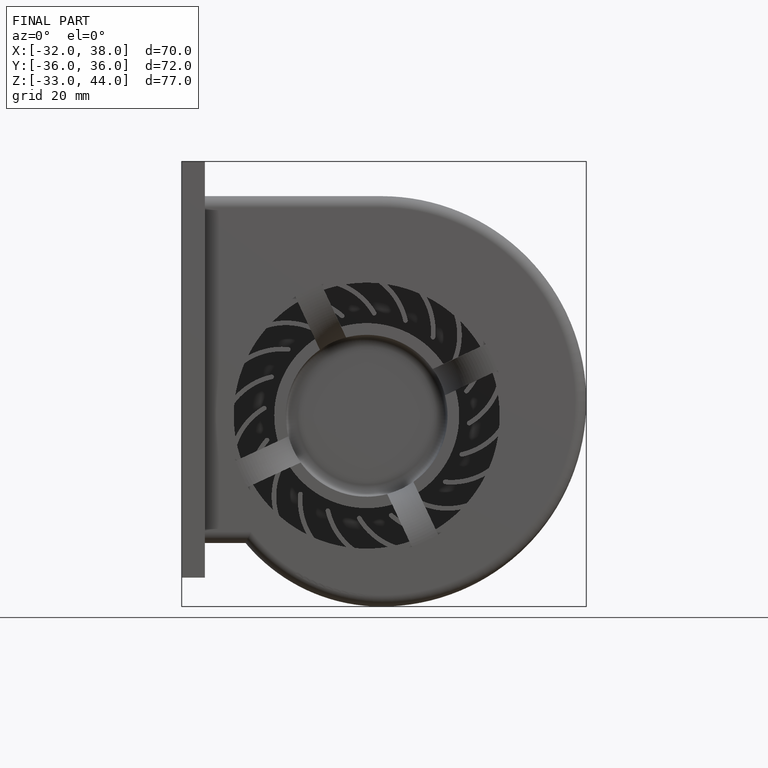
[diagram: finished part — front view with bounding-box wireframe]
